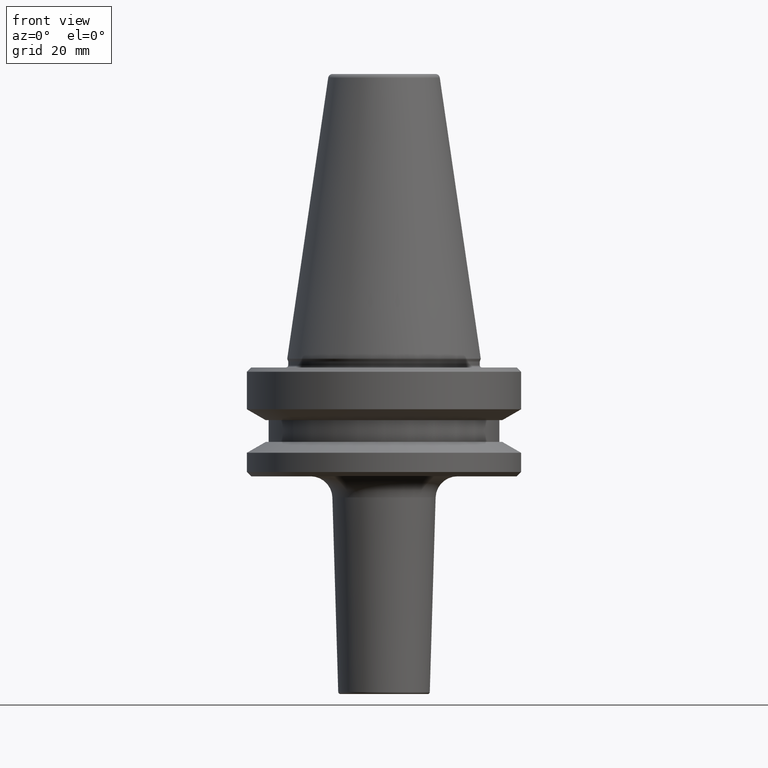
[diagram: clean part render]
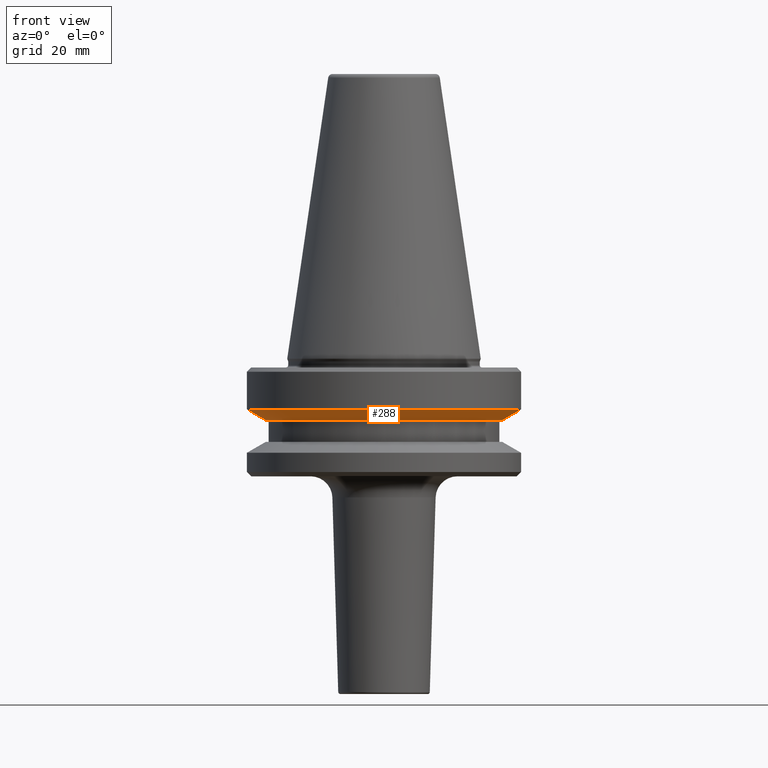
[diagram: same view with one face highlighted and labeled with its STEP entity id]
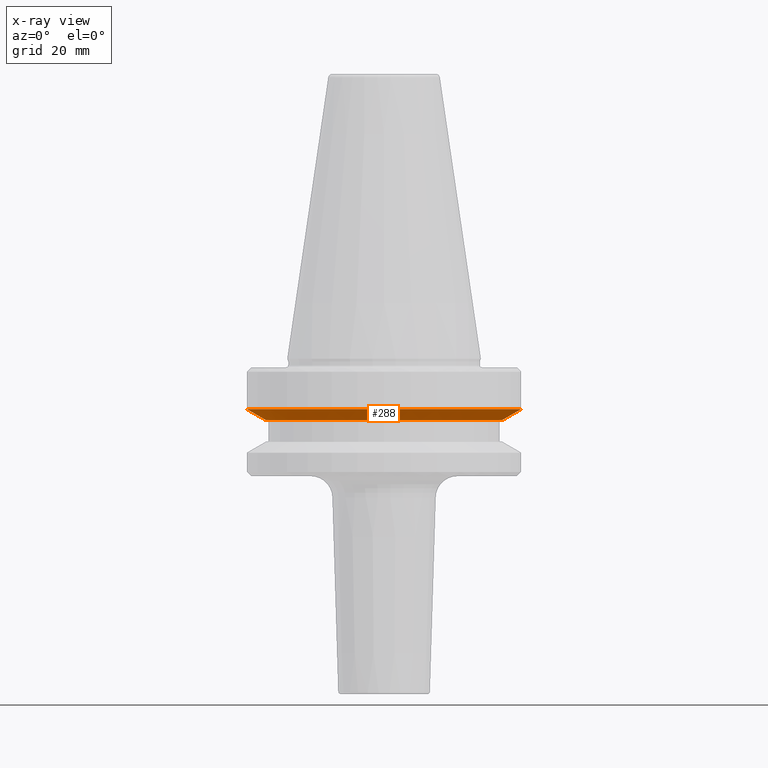
[diagram: x-ray of the same camera — body ghosted, the highlighted face saturated]
A machine part, front view. The second image highlights one B-rep face of the part: STEP entity #288.
The next image is the same camera in x-ray: the body ghosted, the highlighted face saturated — about 0% of this face is hidden behind the body in this view.
In plain terms, the highlighted conical surface has half-angle 60 deg.
Its self-contained STEP definition (entity closure, byte-faithful):
#11 = EDGE_CURVE ( 'NONE', #162, #450, #687, .T. ) ;
#70 = ORIENTED_EDGE ( 'NONE', *, *, #616, .T. ) ;
#83 = VERTEX_POINT ( 'NONE', #286 ) ;
#94 = CARTESIAN_POINT ( 'NONE',  ( 0.0000000000000000000, 0.0000000000000000000, -76.99985799368391800 ) ) ;
#96 = FACE_OUTER_BOUND ( 'NONE', #891, .T. ) ;
#141 = VERTEX_POINT ( 'NONE', #857 ) ;
#162 = VERTEX_POINT ( 'NONE', #340 ) ;
#200 = VECTOR ( 'NONE', #345, 1000.000000000000100 ) ;
#231 = DIRECTION ( 'NONE',  ( -0.0000000000000000000, -0.0000000000000000000, 1.000000000000000000 ) ) ;
#286 = CARTESIAN_POINT ( 'NONE',  ( 31.50000000000008500, 0.0000000000000000000, -76.99985799368391800 ) ) ;
#288 = ADVANCED_FACE ( 'NONE', ( #96 ), #916, .T. ) ;
#321 = CARTESIAN_POINT ( 'NONE',  ( -31.50000000000008500, 3.857637417314172900E-015, -76.99985799368391800 ) ) ;
#340 = CARTESIAN_POINT ( 'NONE',  ( -27.16962701892322600, 3.592478546794674900E-015, -79.50000000000012800 ) ) ;
#345 = DIRECTION ( 'NONE',  ( 0.8660254037844383700, 0.0000000000000000000, 0.5000000000000003300 ) ) ;
#348 = CARTESIAN_POINT ( 'NONE',  ( 27.16962701892322600, 0.0000000000000000000, -79.50000000000012800 ) ) ;
#391 = LINE ( 'NONE', #321, #1009 ) ;
#406 = CARTESIAN_POINT ( 'NONE',  ( 0.0000000000000000000, 0.0000000000000000000, -79.50000000000012800 ) ) ;
#450 = VERTEX_POINT ( 'NONE', #348 ) ;
#490 = EDGE_CURVE ( 'NONE', #141, #83, #757, .T. ) ;
#534 = ORIENTED_EDGE ( 'NONE', *, *, #11, .T. ) ;
#616 = EDGE_CURVE ( 'NONE', #450, #83, #1032, .T. ) ;
#637 = EDGE_CURVE ( 'NONE', #162, #141, #391, .T. ) ;
#646 = AXIS2_PLACEMENT_3D ( 'NONE', #882, #718, #804 ) ;
#674 = DIRECTION ( 'NONE',  ( -0.8660254037844383700, 1.060575238724906500E-016, 0.5000000000000003300 ) ) ;
#687 = CIRCLE ( 'NONE', #889, 27.16962701892322600 ) ;
#695 = DIRECTION ( 'NONE',  ( 1.000000000000000000, 0.0000000000000000000, 0.0000000000000000000 ) ) ;
#718 = DIRECTION ( 'NONE',  ( -0.0000000000000000000, -0.0000000000000000000, 1.000000000000000000 ) ) ;
#757 = CIRCLE ( 'NONE', #1037, 31.50000000000008500 ) ;
#804 = DIRECTION ( 'NONE',  ( 1.000000000000000000, 0.0000000000000000000, 0.0000000000000000000 ) ) ;
#807 = DIRECTION ( 'NONE',  ( 1.000000000000000000, 0.0000000000000000000, 0.0000000000000000000 ) ) ;
#857 = CARTESIAN_POINT ( 'NONE',  ( -31.50000000000008500, 3.857637417314172900E-015, -76.99985799368391800 ) ) ;
#882 = CARTESIAN_POINT ( 'NONE',  ( 0.0000000000000000000, 0.0000000000000000000, -76.99985799368391800 ) ) ;
#889 = AXIS2_PLACEMENT_3D ( 'NONE', #406, #231, #807 ) ;
#891 = EDGE_LOOP ( 'NONE', ( #992, #534, #70, #927 ) ) ;
#916 = CONICAL_SURFACE ( 'NONE', #646, 31.50000000000008500, 1.047197551196597400 ) ;
#917 = CARTESIAN_POINT ( 'NONE',  ( 31.50000000000008500, 0.0000000000000000000, -76.99985799368391800 ) ) ;
#927 = ORIENTED_EDGE ( 'NONE', *, *, #490, .F. ) ;
#992 = ORIENTED_EDGE ( 'NONE', *, *, #637, .F. ) ;
#1009 = VECTOR ( 'NONE', #674, 1000.000000000000100 ) ;
#1032 = LINE ( 'NONE', #917, #200 ) ;
#1037 = AXIS2_PLACEMENT_3D ( 'NONE', #94, #1047, #695 ) ;
#1047 = DIRECTION ( 'NONE',  ( -0.0000000000000000000, -0.0000000000000000000, 1.000000000000000000 ) ) ;